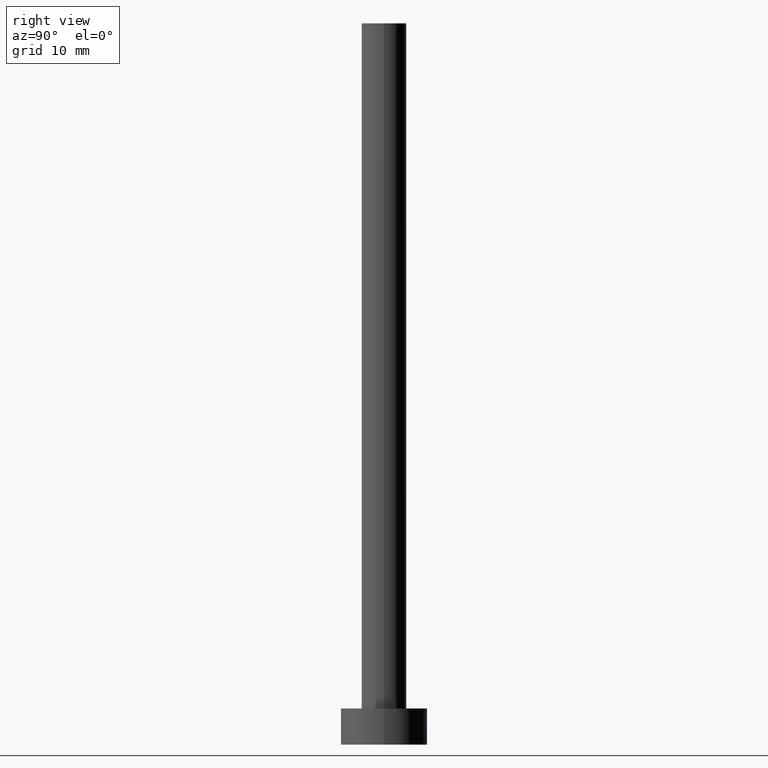
[diagram: clean part render]
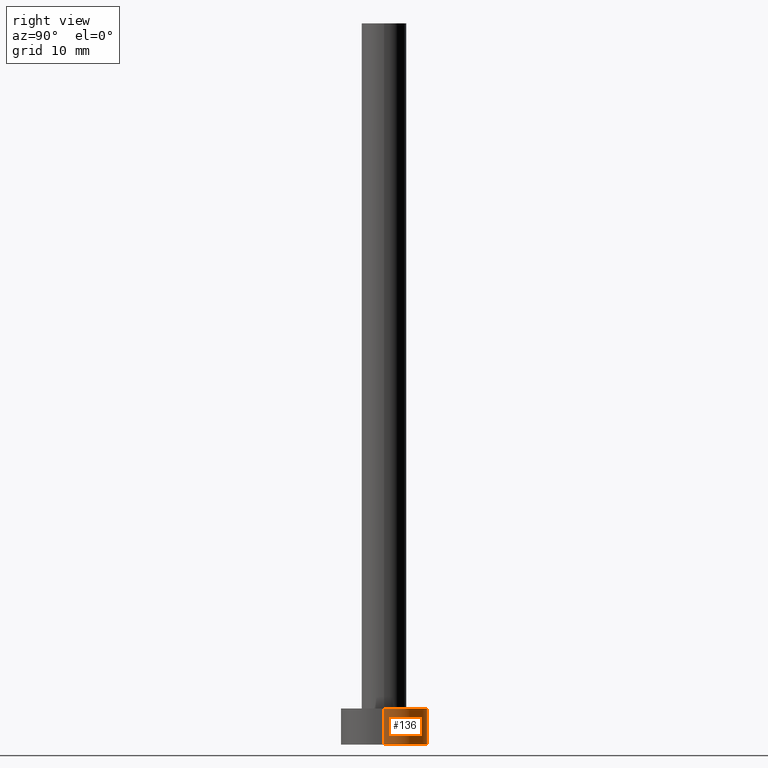
[diagram: same view with one face highlighted and labeled with its STEP entity id]
A machine part, right view. The second image highlights one B-rep face of the part: STEP entity #136.
In plain terms, the highlighted cylindrical surface (partial cylindrical patch) has radius 6 mm, axis along (-0, -0, -1).
Its self-contained STEP definition (entity closure, byte-faithful):
#7 = CARTESIAN_POINT ( 'NONE',  ( 0.000000000000000000, 0.000000000000000000, 0.000000000000000000 ) ) ;
#11 = VERTEX_POINT ( 'NONE', #134 ) ;
#16 = CIRCLE ( 'NONE', #113, 6.000000000000000888 ) ;
#20 = VERTEX_POINT ( 'NONE', #171 ) ;
#27 = CARTESIAN_POINT ( 'NONE',  ( -6.000000000000000888, 0.000000000000000000, 5.000000000000000000 ) ) ;
#29 = CYLINDRICAL_SURFACE ( 'NONE', #36, 6.000000000000000888 ) ;
#32 = DIRECTION ( 'NONE',  ( -1.000000000000000000, 0.000000000000000000, 0.000000000000000000 ) ) ;
#33 = CIRCLE ( 'NONE', #124, 6.000000000000000888 ) ;
#36 = AXIS2_PLACEMENT_3D ( 'NONE', #229, #107, #32 ) ;
#39 = VERTEX_POINT ( 'NONE', #154 ) ;
#40 = LINE ( 'NONE', #112, #117 ) ;
#54 = CARTESIAN_POINT ( 'NONE',  ( -6.000000000000000888, 0.000000000000000000, 5.000000000000000000 ) ) ;
#56 = DIRECTION ( 'NONE',  ( 1.000000000000000000, 0.000000000000000000, 0.000000000000000000 ) ) ;
#57 = EDGE_CURVE ( 'NONE', #39, #20, #40, .T. ) ;
#67 = DIRECTION ( 'NONE',  ( 0.000000000000000000, 0.000000000000000000, 1.000000000000000000 ) ) ;
#70 = EDGE_CURVE ( 'NONE', #150, #11, #226, .T. ) ;
#77 = ORIENTED_EDGE ( 'NONE', *, *, #167, .T. ) ;
#84 = DIRECTION ( 'NONE',  ( 1.000000000000000000, 0.000000000000000000, 0.000000000000000000 ) ) ;
#87 = DIRECTION ( 'NONE',  ( 0.000000000000000000, 0.000000000000000000, 1.000000000000000000 ) ) ;
#96 = DIRECTION ( 'NONE',  ( -0.000000000000000000, -0.000000000000000000, -1.000000000000000000 ) ) ;
#107 = DIRECTION ( 'NONE',  ( -0.000000000000000000, -0.000000000000000000, -1.000000000000000000 ) ) ;
#112 = CARTESIAN_POINT ( 'NONE',  ( 6.000000000000000888, 7.347880794884120722E-16, 5.000000000000000000 ) ) ;
#113 = AXIS2_PLACEMENT_3D ( 'NONE', #159, #67, #56 ) ;
#117 = VECTOR ( 'NONE', #96, 1000.000000000000000 ) ;
#124 = AXIS2_PLACEMENT_3D ( 'NONE', #7, #87, #84 ) ;
#134 = CARTESIAN_POINT ( 'NONE',  ( -6.000000000000000888, 0.000000000000000000, 0.000000000000000000 ) ) ;
#136 = ADVANCED_FACE ( 'NONE', ( #199 ), #29, .T. ) ;
#141 = ORIENTED_EDGE ( 'NONE', *, *, #57, .T. ) ;
#150 = VERTEX_POINT ( 'NONE', #27 ) ;
#154 = CARTESIAN_POINT ( 'NONE',  ( 6.000000000000000888, 7.347880794884120722E-16, 5.000000000000000000 ) ) ;
#159 = CARTESIAN_POINT ( 'NONE',  ( 0.000000000000000000, 0.000000000000000000, 5.000000000000000000 ) ) ;
#167 = EDGE_CURVE ( 'NONE', #20, #11, #33, .T. ) ;
#171 = CARTESIAN_POINT ( 'NONE',  ( 6.000000000000000888, 7.347880794884120722E-16, 0.000000000000000000 ) ) ;
#180 = ORIENTED_EDGE ( 'NONE', *, *, #204, .F. ) ;
#191 = VECTOR ( 'NONE', #205, 1000.000000000000000 ) ;
#196 = ORIENTED_EDGE ( 'NONE', *, *, #70, .F. ) ;
#199 = FACE_OUTER_BOUND ( 'NONE', #246, .T. ) ;
#204 = EDGE_CURVE ( 'NONE', #39, #150, #16, .T. ) ;
#205 = DIRECTION ( 'NONE',  ( -0.000000000000000000, -0.000000000000000000, -1.000000000000000000 ) ) ;
#226 = LINE ( 'NONE', #54, #191 ) ;
#229 = CARTESIAN_POINT ( 'NONE',  ( 0.000000000000000000, 0.000000000000000000, 5.000000000000000000 ) ) ;
#246 = EDGE_LOOP ( 'NONE', ( #180, #141, #77, #196 ) ) ;